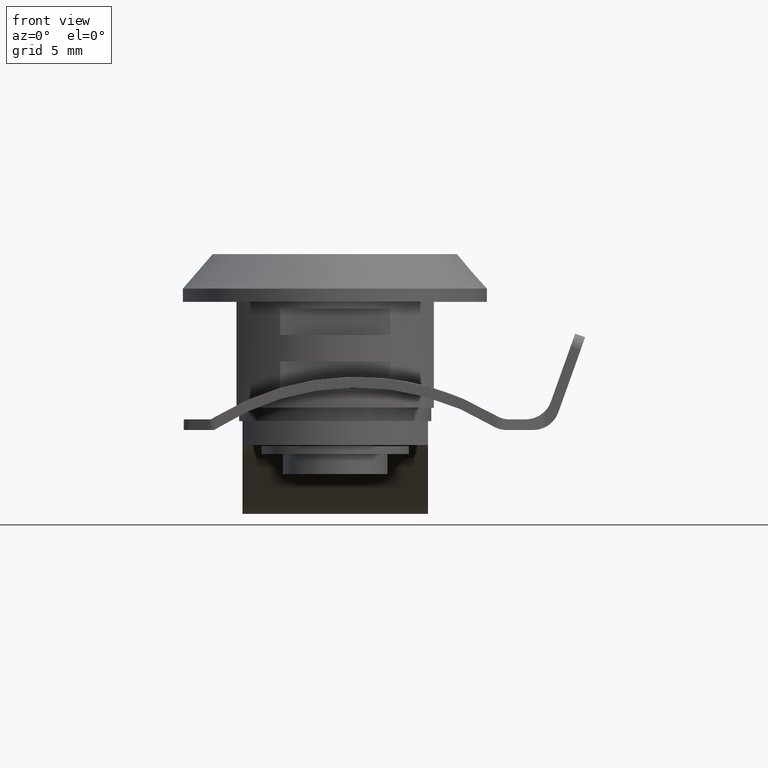
[diagram: clean part render]
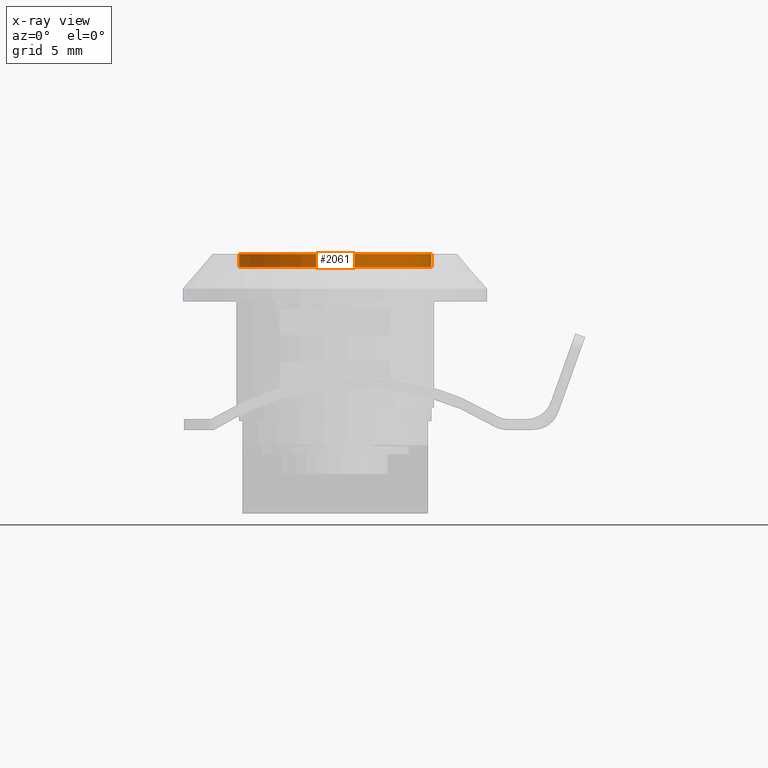
[diagram: x-ray — body ghosted, one internal face saturated and labeled with its STEP entity id]
A machine part, front view, then the same camera in x-ray: the body is ghosted and one INTERNAL B-rep face — a face not visible from any outside direction — is saturated and labeled: STEP entity #2061.
In plain terms, the highlighted cylindrical surface (bore or boss wall) has radius 7.25 mm, axis along (0, 0, -1).
Its self-contained STEP definition (entity closure, byte-faithful):
#69=FACE_BOUND('',#267,.T.);
#86=CYLINDRICAL_SURFACE('',#2200,7.25);
#145=FACE_OUTER_BOUND('',#266,.T.);
#266=EDGE_LOOP('',(#1440));
#267=EDGE_LOOP('',(#1441));
#786=CIRCLE('',#2201,7.25);
#787=CIRCLE('',#2202,7.25);
#889=VERTEX_POINT('',#3126);
#890=VERTEX_POINT('',#3128);
#1110=EDGE_CURVE('',#889,#889,#786,.T.);
#1111=EDGE_CURVE('',#890,#890,#787,.T.);
#1440=ORIENTED_EDGE('',*,*,#1110,.T.);
#1441=ORIENTED_EDGE('',*,*,#1111,.F.);
#2061=ADVANCED_FACE('',(#145,#69),#86,.F.);
#2200=AXIS2_PLACEMENT_3D('',#3125,#2497,#2498);
#2201=AXIS2_PLACEMENT_3D('',#3127,#2499,#2500);
#2202=AXIS2_PLACEMENT_3D('',#3129,#2501,#2502);
#2497=DIRECTION('center_axis',(0.,0.,-1.));
#2498=DIRECTION('ref_axis',(-1.,0.,0.));
#2499=DIRECTION('center_axis',(0.,0.,-1.));
#2500=DIRECTION('ref_axis',(-1.,0.,0.));
#2501=DIRECTION('center_axis',(0.,0.,-1.));
#2502=DIRECTION('ref_axis',(-1.,0.,0.));
#3125=CARTESIAN_POINT('Origin',(0.,0.,0.));
#3126=CARTESIAN_POINT('',(7.25,8.87868929381831E-16,-1.));
#3127=CARTESIAN_POINT('Origin',(0.,0.,-1.));
#3128=CARTESIAN_POINT('',(7.25,8.87868929381831E-16,0.));
#3129=CARTESIAN_POINT('Origin',(0.,0.,0.));